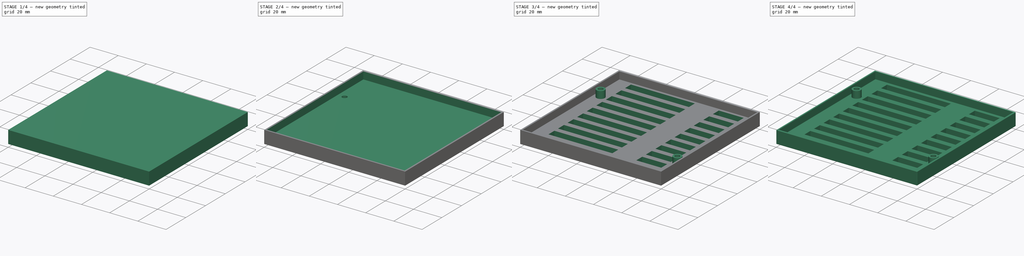
[diagram: build sequence overview — one tinted view per stage of 4, left to right]
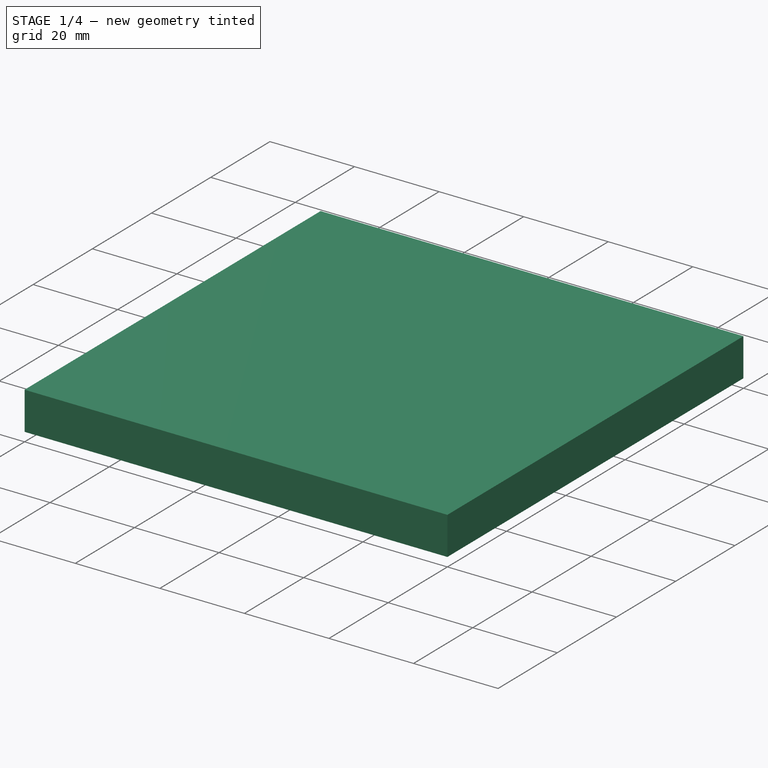
[diagram: stage 1 of 4 — iso view after this stage's code; geometry added in this stage tinted green]
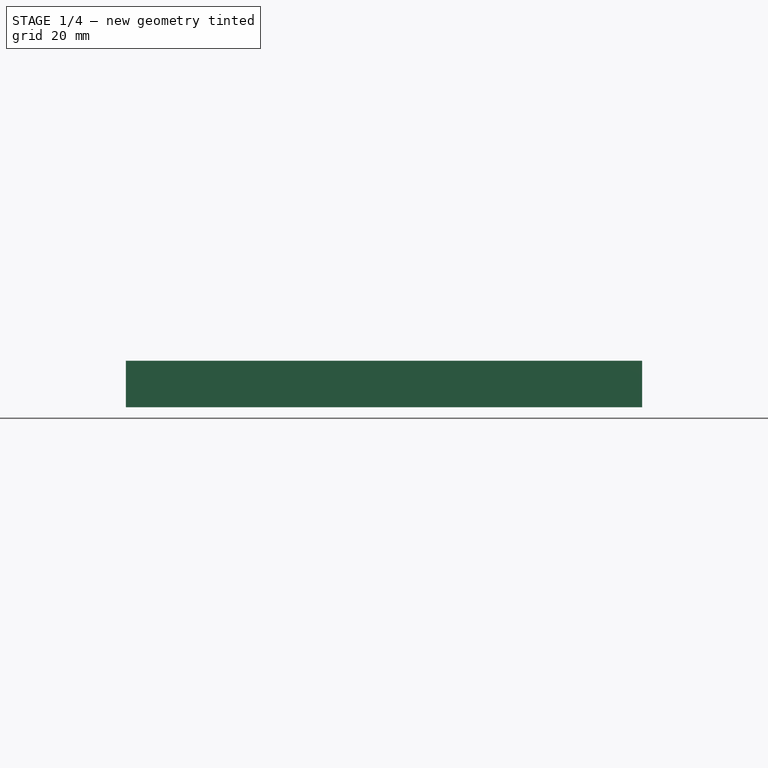
[diagram: stage 1 of 4 — front view after this stage's code; geometry added in this stage tinted green]
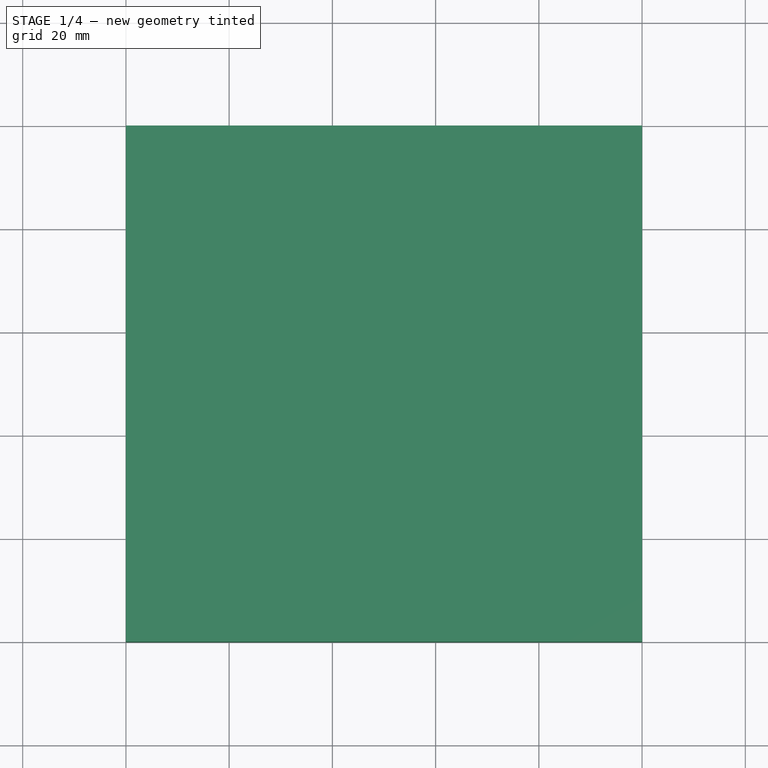
[diagram: stage 1 of 4 — top view after this stage's code; geometry added in this stage tinted green]
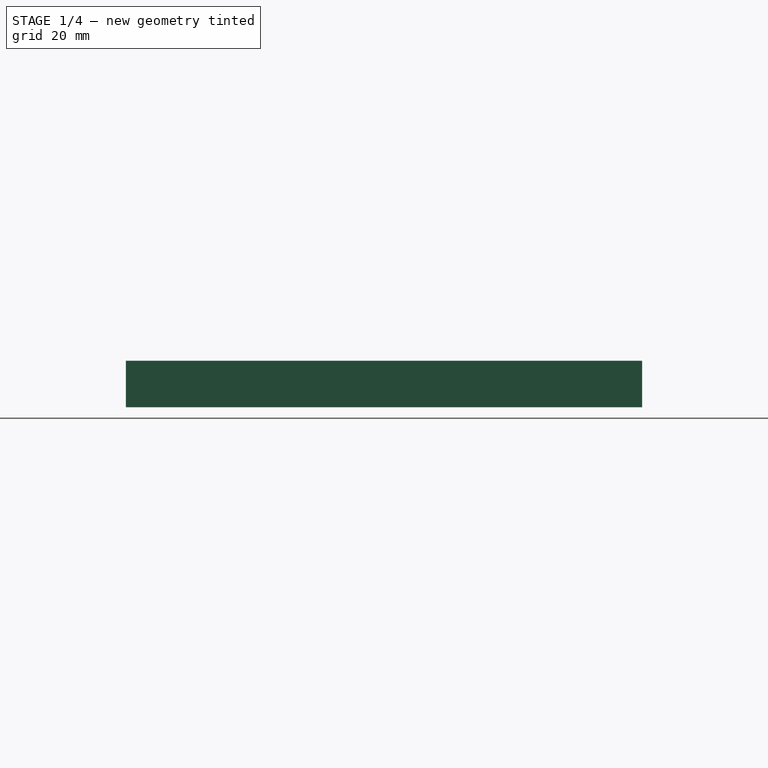
[diagram: stage 1 of 4 — right view after this stage's code; geometry added in this stage tinted green]
FCSTD DOCUMENT  (FreeCAD 1.0R39319 (Git))
Label: PCB mount
License: All rights reserved
LicenseURL: https://en.wikipedia.org/wiki/All_rights_reserved
objects: Sketcher::SketchObject×6, PartDesign::Pocket×4, PartDesign::Pad×2, PartDesign::Fillet×2, PartDesign::LinearPattern×1, PartDesign::Body×1
note: 39 computed .brp shape members not serialized (recipe doc carries the construction recipe); baked Part::Feature solids carry a one-line shape summary decoded from their .brp

FEATURE [Sketcher::SketchObject] Sketch
  ArcFitTolerance = 1e-06
  AttachmentSupport = -> [XY_Plane]
  FullyConstrained = true
  MakeInternals = false
  MapMode = 5
  sketch-geometry (4):
    g0: LineSegment StartX=0 StartY=0 StartZ=0 EndX=100 EndY=0 EndZ=0
    g1: LineSegment StartX=100 StartY=0 StartZ=0 EndX=100 EndY=100 EndZ=0
    g2: LineSegment StartX=100 StartY=100 StartZ=0 EndX=0 EndY=100 EndZ=0
    g3: LineSegment StartX=0 StartY=100 StartZ=0 EndX=0 EndY=0 EndZ=0
  constraints (11):
    c: Coincident(g0,g1)
    c: Coincident(g1,g2)
    c: Coincident(g2,g3)
    c: Coincident(g3,g0)
    c: Horizontal(g0)
    c: Horizontal(g2)
    c: Vertical(g1)
    c: Vertical(g3)
    c: Distance(g1,g3) = 100
    c: Distance(g0,g2) = 100
    c: Coincident(g0,g-1)
FEATURE [PartDesign::Pad] Pad
  Direction = (0,0,1)
  Length = 9
  Length2 = 10
  Profile = -> Sketch
  ReferenceAxis = -> Sketch [N_Axis]
  Refine = true
  Suppressed = false
  Type = 0
FEATURE [Sketcher::SketchObject] Sketch001
  ArcFitTolerance = 1e-06
  AttachmentSupport = -> [Pad]
  ExternalGeometry = -> [Pad]
  FullyConstrained = true
  MakeInternals = false
  MapMode = 5
  Placement = pos=(0,0,0) rot=(1,0,0;3.14159rad)
  sketch-geometry (25):
    g0: LineSegment [constr] StartX=100 StartY=0 StartZ=0 EndX=70 EndY=0 EndZ=0
    g1: LineSegment [constr] StartX=70 StartY=0 StartZ=0 EndX=70 EndY=-100 EndZ=0
    g2: LineSegment [constr] StartX=70 StartY=-100 StartZ=0 EndX=100 EndY=-100 EndZ=0
    g3: LineSegment [constr] StartX=100 StartY=-100 StartZ=0 EndX=100 EndY=0 EndZ=0
    g4: LineSegment [constr] StartX=70 StartY=0 StartZ=0 EndX=59 EndY=0 EndZ=0
    g5: LineSegment [constr] StartX=59 StartY=0 StartZ=0 EndX=59 EndY=-100 EndZ=0
    g6: LineSegment [constr] StartX=59 StartY=-100 StartZ=0 EndX=70 EndY=-100 EndZ=0
    g7: LineSegment [constr] StartX=70 StartY=-100 StartZ=0 EndX=70 EndY=0 EndZ=0
    g8: LineSegment [constr] StartX=59 StartY=0 StartZ=0 EndX=59 EndY=-9.5 EndZ=0
    g9: LineSegment [constr] StartX=59 StartY=-9.5 StartZ=0 EndX=59 EndY=-20.5 EndZ=0
    g10: LineSegment [constr] StartX=59 StartY=-20.5 StartZ=0 EndX=70 EndY=-20.5 EndZ=0
    g11: LineSegment [constr] StartX=70 StartY=-20.5 StartZ=0 EndX=70 EndY=-9.5 EndZ=0
    g12: LineSegment [constr] StartX=70 StartY=-9.5 StartZ=0 EndX=59 EndY=-9.5 EndZ=0
    g13: LineSegment [constr] StartX=59 StartY=-100 StartZ=0 EndX=59 EndY=-90.5 EndZ=0
    g14: LineSegment [constr] StartX=59 StartY=-90.5 StartZ=0 EndX=70 EndY=-90.5 EndZ=0
    g15: LineSegment [constr] StartX=70 StartY=-90.5 StartZ=0 EndX=70 EndY=-79.5 EndZ=0
    g16: LineSegment [constr] StartX=70 StartY=-79.5 StartZ=0 EndX=59 EndY=-79.5 EndZ=0
    g17: LineSegment [constr] StartX=59 StartY=-79.5 StartZ=0 EndX=59 EndY=-90.5 EndZ=0
    g18: LineSegment [constr] StartX=59 StartY=-9.5 StartZ=0 EndX=70 EndY=-20.5 EndZ=0
    g19: LineSegment [constr] StartX=59 StartY=-20.5 StartZ=0 EndX=70 EndY=-9.5 EndZ=0
    g20: LineSegment [constr] StartX=59 StartY=-79.5 StartZ=0 EndX=70 EndY=-90.5 EndZ=0
    g21: LineSegment [constr] StartX=59 StartY=-90.5 StartZ=0 EndX=70 EndY=-79.5 EndZ=0
    g22: LineSegment [constr] StartX=64.5 StartY=-15 StartZ=0 EndX=64.5 EndY=-85 EndZ=0
    g23: Circle CenterX=64.5 CenterY=-15 CenterZ=0 NormalX=0 NormalY=0 NormalZ=1 AngleXU=0 Radius=5.5
    g24: Circle CenterX=64.5 CenterY=-85 CenterZ=0 NormalX=0 NormalY=0 NormalZ=1 AngleXU=0 Radius=5.5
  constraints (64):
    c: Coincident(g0,g1)
    c: Coincident(g1,g2)
    c: Coincident(g2,g3)
    c: Coincident(g3,g0)
    c: Horizontal(g0)
    c: Horizontal(g2)
    c: Vertical(g1)
    c: Vertical(g3)
    c: Coincident(g0,g-5)
    c: PointOnObject(g1,g-4)
    c: DistanceX(g0,g0) = 30
    c: Coincident(g4,g5)
    c: Coincident(g5,g6)
    c: Coincident(g6,g7)
    c: Coincident(g7,g4)
    c: Horizontal(g4)
    c: Horizontal(g6)
    c: Vertical(g5)
    c: Vertical(g7)
    c: Distance(g5,g7) = 11
    c: Coincident(g4,g0)
    c: PointOnObject(g5,g-4)
    c: Coincident(g8,g4)
    c: PointOnObject(g8,g5)
    c: Coincident(g9,g10)
    c: Coincident(g10,g11)
    c: Coincident(g11,g12)
    c: Coincident(g12,g9)
    c: Vertical(g9)
    c: Vertical(g11)
    c: Horizontal(g10)
    c: Horizontal(g12)
    c: Distance(g10,g12) = 11
    c: Coincident(g9,g8)
    c: PointOnObject(g10,g1)
    c: Coincident(g13,g5)
    c: PointOnObject(g13,g5)
    c: Coincident(g14,g15)
    c: Coincident(g15,g16)
    c: Coincident(g16,g17)
    c: Coincident(g17,g14)
    c: Horizontal(g14)
    c: Horizontal(g16)
    c: Vertical(g15)
    c: Vertical(g17)
    c: Coincident(g14,g13)
    c: PointOnObject(g15,g1)
    c: Equal(g17,g9)
    c: Coincident(g18,g8)
    c: Coincident(g18,g10)
    c: Coincident(g19,g9)
    c: Coincident(g19,g11)
    c: Coincident(g20,g16)
    c: Coincident(g20,g14)
    c: Coincident(g21,g13)
    c: Coincident(g21,g15)
    c: Symmetric(g18,g18,g22)
    c: Symmetric(g21,g21,g22)
    c: DistanceY(g22,g22) = 70
    c: Coincident(g23,g22)
    c: Tangent(g23,g1)
    c: Symmetric(g21,g21,g24)
    c: Tangent(g24,g1)
    c: Distance(g22,g-5) = 15
FEATURE [PartDesign::Pocket] Pocket
  BaseFeature = -> Pad
  Direction = (0,0,1)
  Length = 3.1
  Length2 = 5
  Profile = -> Sketch001
  ReferenceAxis = -> Sketch001 [N_Axis]
  Refine = true
  Suppressed = false
  Type = 0
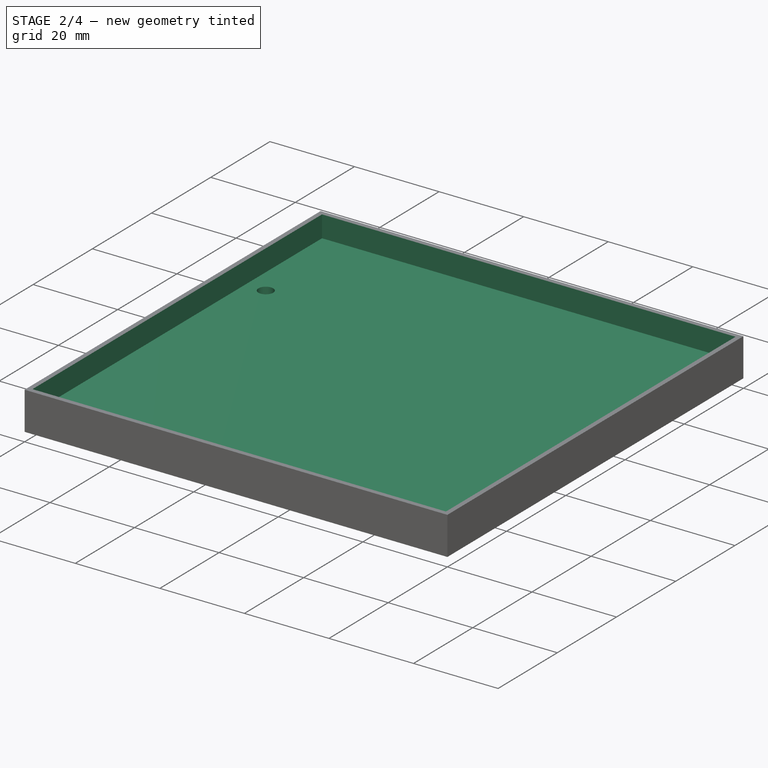
[diagram: stage 2 of 4 — iso view after this stage's code; geometry added in this stage tinted green]
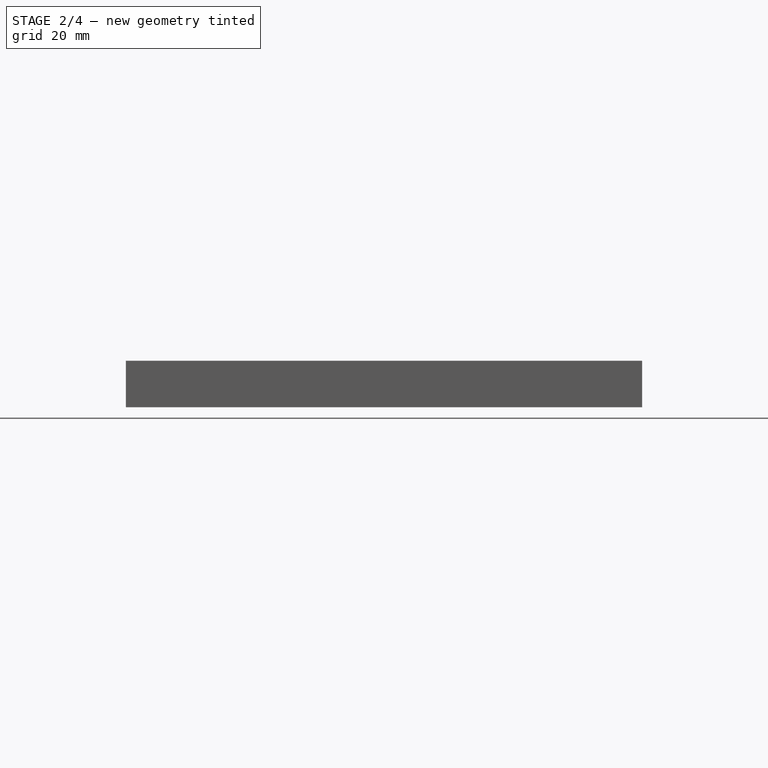
[diagram: stage 2 of 4 — front view after this stage's code; geometry added in this stage tinted green]
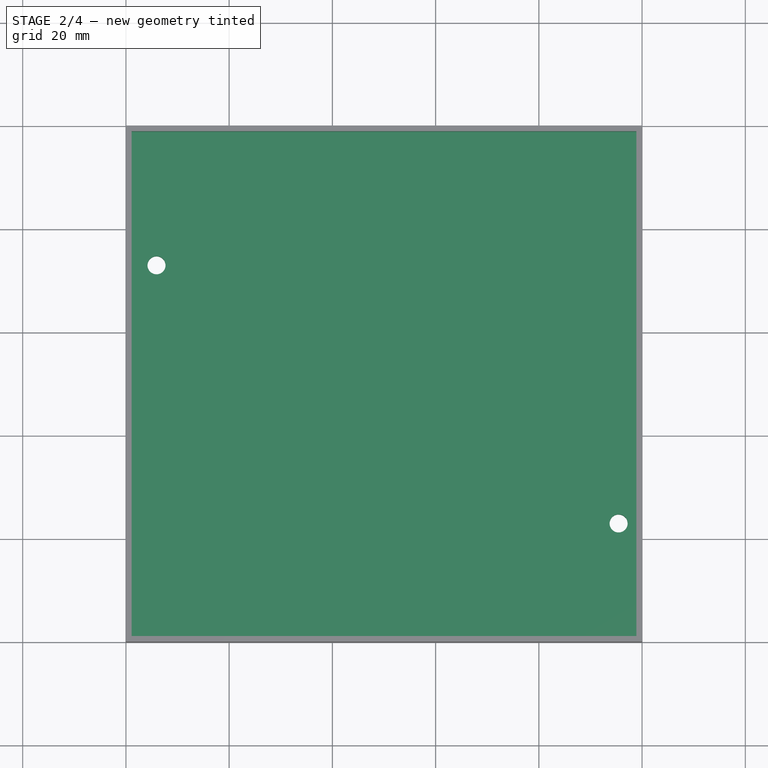
[diagram: stage 2 of 4 — top view after this stage's code; geometry added in this stage tinted green]
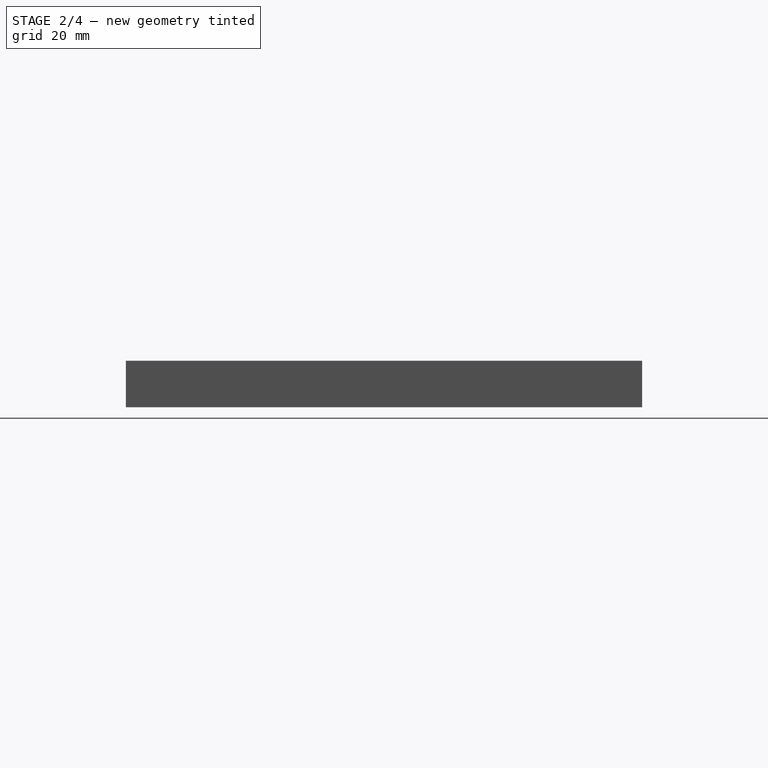
[diagram: stage 2 of 4 — right view after this stage's code; geometry added in this stage tinted green]
FEATURE [Sketcher::SketchObject] Sketch002
  ArcFitTolerance = 1e-06
  AttachmentSupport = -> [Pocket]
  ExternalGeometry = -> [Pocket]
  FullyConstrained = true
  MakeInternals = false
  MapMode = 5
  Placement = pos=(0,0,9) rot=(0,0,1;0rad)
  sketch-geometry (4):
    g0: LineSegment StartX=1.1 StartY=98.9 StartZ=0 EndX=1.1 EndY=1.1 EndZ=0
    g1: LineSegment StartX=1.1 StartY=1.1 StartZ=0 EndX=98.9 EndY=1.1 EndZ=0
    g2: LineSegment StartX=98.9 StartY=1.1 StartZ=0 EndX=98.9 EndY=98.9 EndZ=0
    g3: LineSegment StartX=98.9 StartY=98.9 StartZ=0 EndX=1.1 EndY=98.9 EndZ=0
  constraints (12):
    c: Coincident(g0,g1)
    c: Coincident(g1,g2)
    c: Coincident(g2,g3)
    c: Coincident(g3,g0)
    c: Vertical(g0)
    c: Vertical(g2)
    c: Horizontal(g1)
    c: Horizontal(g3)
    c: Distance(g-4,g2) = 1.1
    c: Distance(g-3,g3) = 1.1
    c: Distance(g-2,g0) = 1.1
    c: Distance(g-1,g1) = 1.1
FEATURE [PartDesign::Pocket] Pocket001
  BaseFeature = -> Pocket
  Direction = (0,0,-1)
  Length = 5.1
  Length2 = 5
  Profile = -> Sketch002
  ReferenceAxis = -> Sketch002 [N_Axis]
  Refine = true
  Suppressed = false
  Type = 0
FEATURE [Sketcher::SketchObject] Sketch003
  ArcFitTolerance = 1e-06
  AttachmentSupport = -> [Pocket001]
  ExternalGeometry = -> [Pocket001]
  FullyConstrained = true
  MakeInternals = false
  MapMode = 5
  Placement = pos=(0,0,3.9) rot=(0,0,1;0rad)
  sketch-geometry (2):
    g0: Circle CenterX=95.45 CenterY=23 CenterZ=0 NormalX=0 NormalY=0 NormalZ=1 AngleXU=0 Radius=1.75
    g1: Circle CenterX=5.925 CenterY=73.025 CenterZ=0 NormalX=0 NormalY=0 NormalZ=1 AngleXU=0 Radius=1.75
  constraints (6):
    c: Distance(g0,g-4) = 4.55
    c: Distance(g0,g-6) = 23
    c: Diameter(g0) = 3.5
    c: Distance(g1,g-5) = 5.925
    c: Diameter(g1) = 3.5
    c: Distance(g1,g-3) = 26.975
FEATURE [PartDesign::Pocket] Pocket002
  BaseFeature = -> Pocket001
  Direction = (0,0,-1)
  Length = 5
  Length2 = 5
  Profile = -> Sketch003
  ReferenceAxis = -> Sketch003 [N_Axis]
  Refine = true
  Suppressed = false
  Type = 1
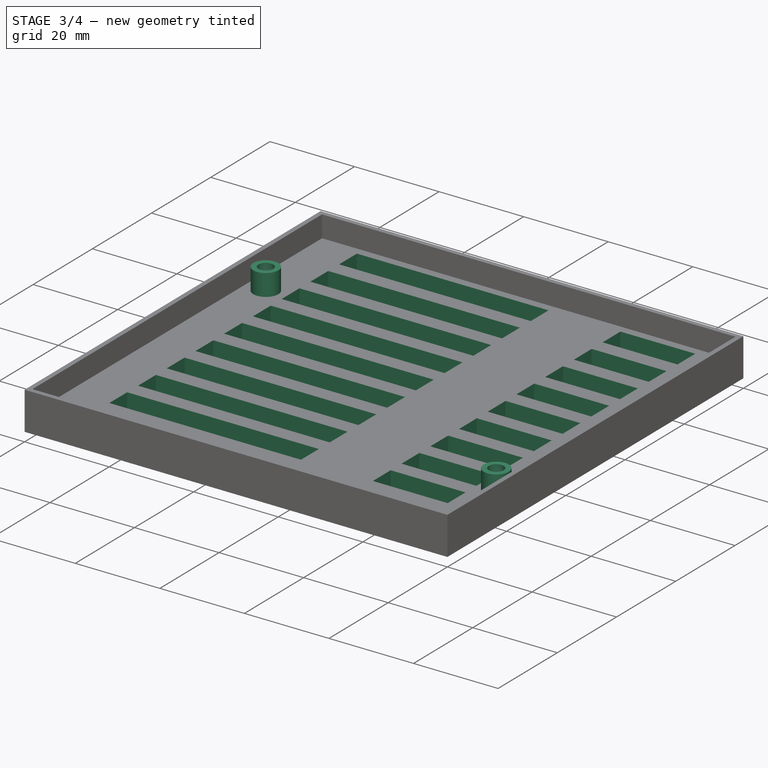
[diagram: stage 3 of 4 — iso view after this stage's code; geometry added in this stage tinted green]
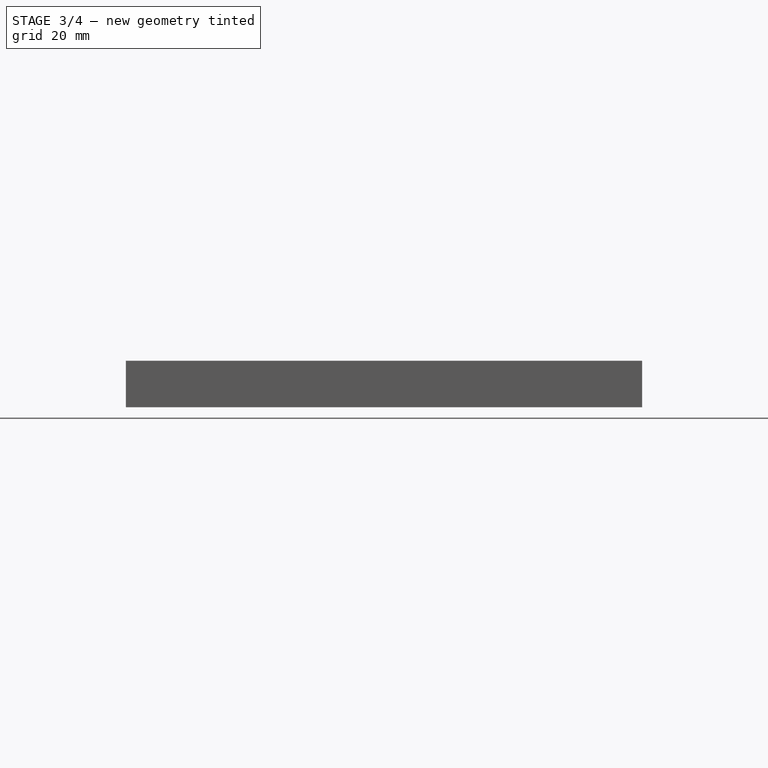
[diagram: stage 3 of 4 — front view after this stage's code; geometry added in this stage tinted green]
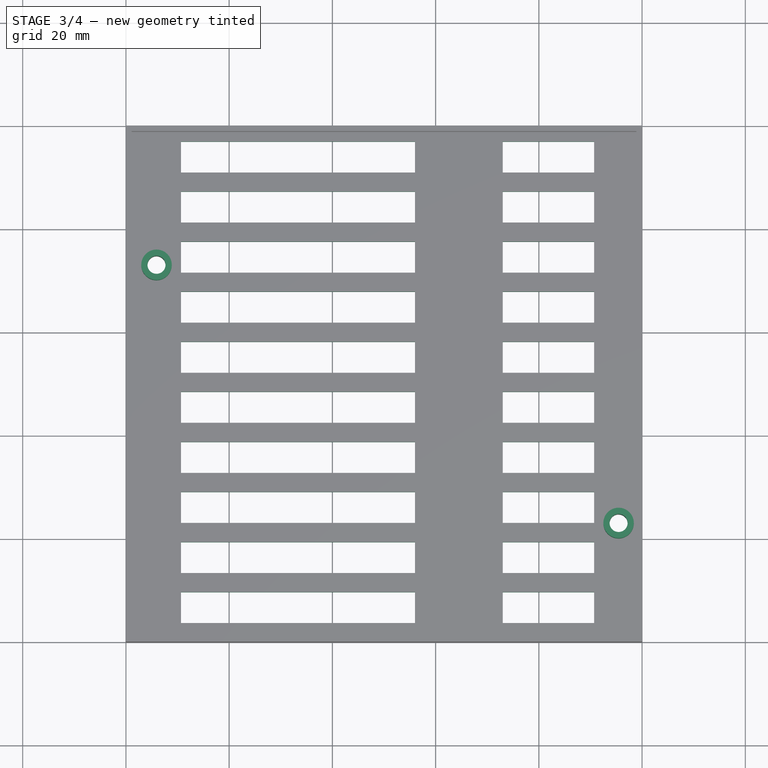
[diagram: stage 3 of 4 — top view after this stage's code; geometry added in this stage tinted green]
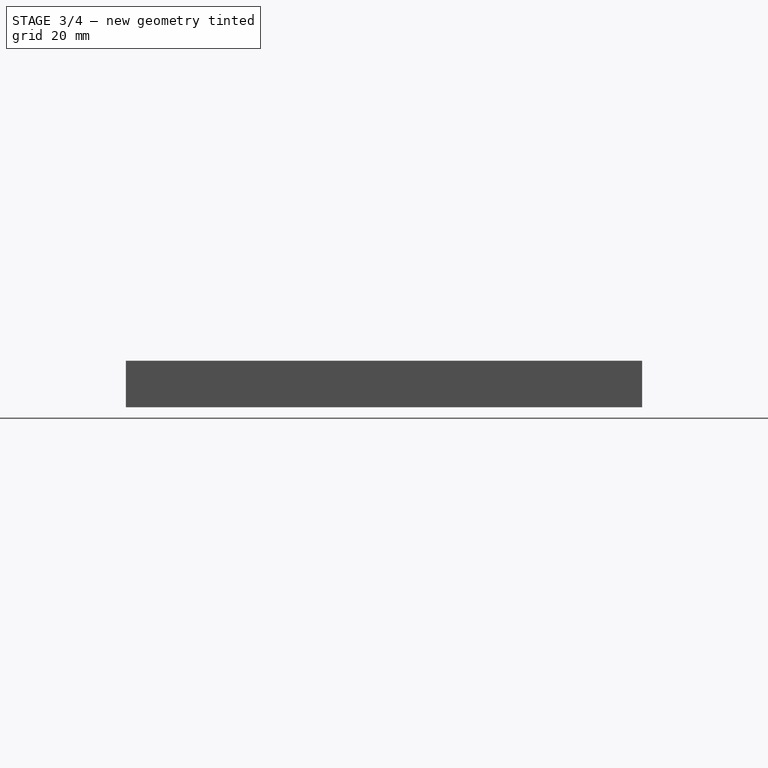
[diagram: stage 3 of 4 — right view after this stage's code; geometry added in this stage tinted green]
FEATURE [Sketcher::SketchObject] Sketch004
  ArcFitTolerance = 1e-06
  AttachmentSupport = -> [Pocket002]
  ExternalGeometry = -> [Pocket002]
  FullyConstrained = true
  MakeInternals = false
  MapMode = 5
  Placement = pos=(0,0,3.9) rot=(0,0,1;0rad)
  sketch-geometry (4):
    g0: Circle CenterX=5.925 CenterY=73.025 CenterZ=0 NormalX=0 NormalY=0 NormalZ=1 AngleXU=0 Radius=1.75
    g1: Circle CenterX=5.925 CenterY=73.025 CenterZ=0 NormalX=0 NormalY=0 NormalZ=1 AngleXU=0 Radius=2.95
    g2: Circle CenterX=95.45 CenterY=23 CenterZ=0 NormalX=0 NormalY=0 NormalZ=1 AngleXU=0 Radius=1.75
    g3: Circle CenterX=95.45 CenterY=23 CenterZ=0 NormalX=0 NormalY=0 NormalZ=1 AngleXU=0 Radius=2.95
  constraints (8):
    c: Coincident(g0,g-3)
    c: Equal(g0,g-3)
    c: Coincident(g1,g0)
    c: Coincident(g2,g-4)
    c: Equal(g2,g-4)
    c: Coincident(g3,g2)
    c: Distance(g3,g2) = 1.2
    c: Equal(g3,g1)
FEATURE [PartDesign::Pad] Pad001
  BaseFeature = -> Pocket002
  Direction = (0,0,1)
  Length = 5.1
  Length2 = 10
  Profile = -> Sketch004
  ReferenceAxis = -> Sketch004 [N_Axis]
  Refine = true
  Suppressed = false
  Type = 0
FEATURE [Sketcher::SketchObject] Sketch005
  ArcFitTolerance = 1e-06
  AttachmentSupport = -> [Pad001]
  ExternalGeometry = -> [Pad001]
  FullyConstrained = true
  MakeInternals = false
  MapMode = 5
  Placement = pos=(0,0,0) rot=(1,0,0;3.14159rad)
  sketch-geometry (8):
    g0: LineSegment StartX=10.675 StartY=-91 StartZ=0 EndX=10.675 EndY=-97 EndZ=0
    g1: LineSegment StartX=10.675 StartY=-97 StartZ=0 EndX=56 EndY=-97 EndZ=0
    g2: LineSegment StartX=56 StartY=-97 StartZ=0 EndX=56 EndY=-91 EndZ=0
    g3: LineSegment StartX=56 StartY=-91 StartZ=0 EndX=10.675 EndY=-91 EndZ=0
    g4: LineSegment StartX=73 StartY=-91 StartZ=0 EndX=73 EndY=-97 EndZ=0
    g5: LineSegment StartX=73 StartY=-97 StartZ=0 EndX=90.7 EndY=-97 EndZ=0
    g6: LineSegment StartX=90.7 StartY=-97 StartZ=0 EndX=90.7 EndY=-91 EndZ=0
    g7: LineSegment StartX=90.7 StartY=-91 StartZ=0 EndX=73 EndY=-91 EndZ=0
  constraints (24):
    c: Coincident(g0,g1)
    c: Coincident(g1,g2)
    c: Coincident(g2,g3)
    c: Coincident(g3,g0)
    c: Vertical(g0)
    c: Vertical(g2)
    c: Horizontal(g1)
    c: Horizontal(g3)
    c: Distance(g-8,g1) = 3
    c: Distance(g2,g2) = 6
    c: Distance(g-4,g0) = 3
    c: Distance(g-10,g2) = 3
    c: Coincident(g4,g5)
    c: Coincident(g5,g6)
    c: Coincident(g6,g7)
    c: Coincident(g7,g4)
    c: Vertical(g4)
    c: Vertical(g6)
    c: Horizontal(g5)
    c: Horizontal(g7)
    c: Distance(g-3,g6) = 3
    c: Distance(g-12,g4) = 3
    c: Equal(g4,g2)
    c: Distance(g-8,g5) = 3
FEATURE [PartDesign::Pocket] Pocket003
  BaseFeature = -> Pad001
  Direction = (0,0,1)
  Length = 5
  Length2 = 5
  Profile = -> Sketch005
  ReferenceAxis = -> Sketch005 [N_Axis]
  Refine = true
  Suppressed = false
  Type = 1
FEATURE [PartDesign::LinearPattern] LinearPattern
  BaseFeature = -> Pocket003
  Direction = -> Pocket003 [Edge9]
  Length = 87.3
  Mode = 1
  Occurrences = 10
  Offset = 9.7
  Originals = -> [Pocket003]
  Refine = true
  Reversed = true
  Suppressed = false
  TransformMode = 0
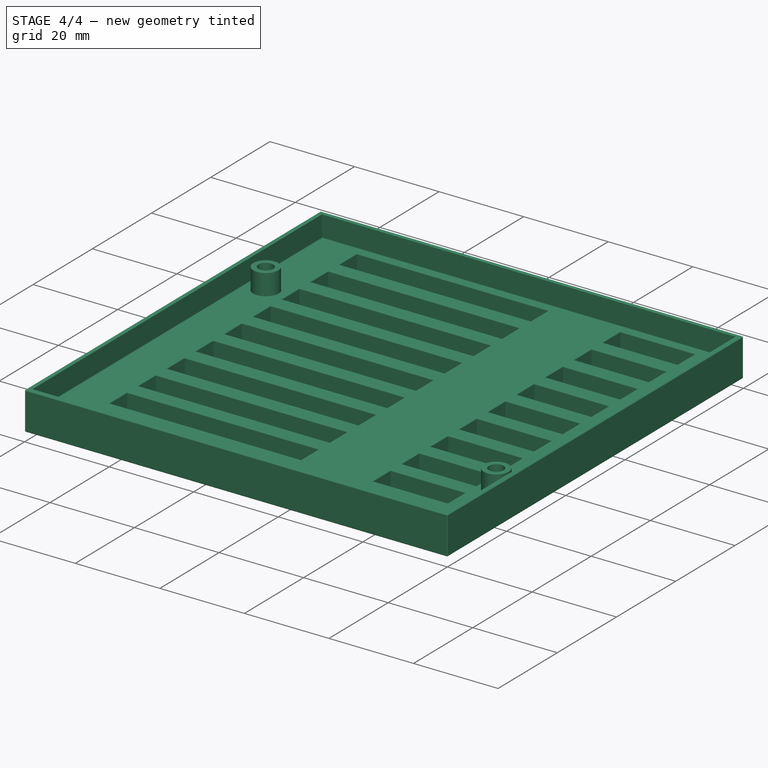
[diagram: stage 4 of 4 — iso view after this stage's code; geometry added in this stage tinted green]
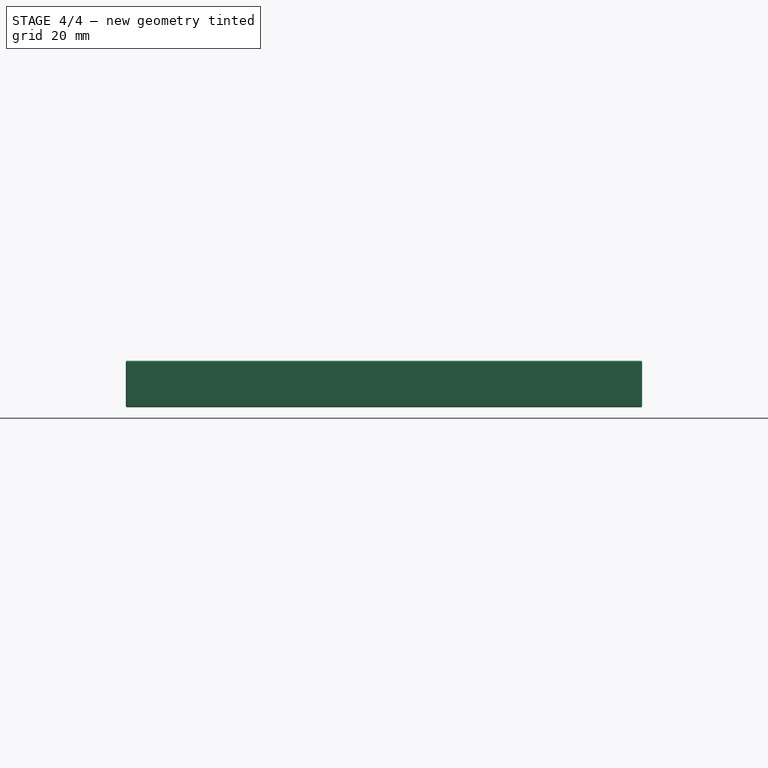
[diagram: stage 4 of 4 — front view after this stage's code; geometry added in this stage tinted green]
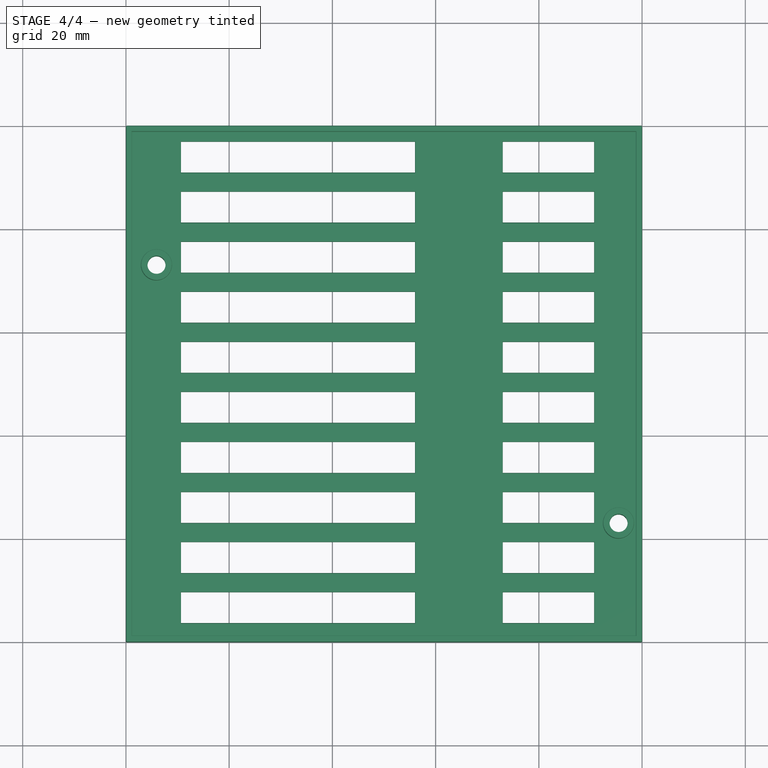
[diagram: stage 4 of 4 — top view after this stage's code; geometry added in this stage tinted green]
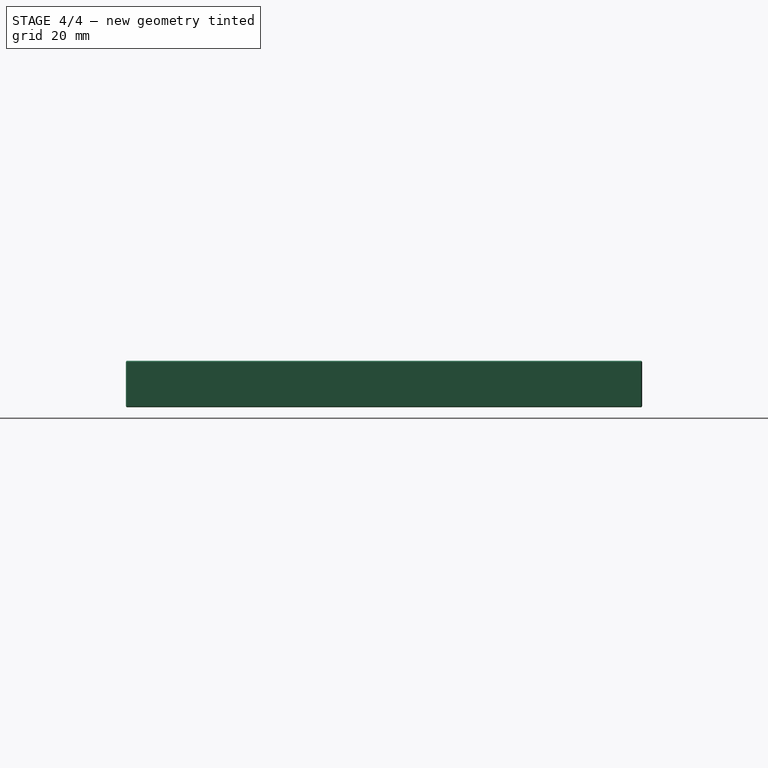
[diagram: stage 4 of 4 — right view after this stage's code; geometry added in this stage tinted green]
FEATURE [PartDesign::Fillet] Fillet
  Base = -> LinearPattern [Face95]
  BaseFeature = -> LinearPattern
  Radius = 0.2
  Refine = true
  SupportTransform = false
  Suppressed = false
  UseAllEdges = false
FEATURE [PartDesign::Fillet] Fillet001
  Base = -> Fillet [Face4,Face10,Face12,Face11,Face13]
  BaseFeature = -> Fillet
  Radius = 0.25
  Refine = true
  SupportTransform = false
  Suppressed = false
  UseAllEdges = false
FEATURE [PartDesign::Body] Body
  AllowCompound = false
  Group = -> [Sketch,Pad,Sketch001,Pocket,Sketch002,Pocket001,Sketch003,Pocket002,Sketch004,Pad001,Sketch005,Pocket003,LinearPattern,Fillet,Fillet001]
  Origin = -> Origin
  Tip = -> Fillet001
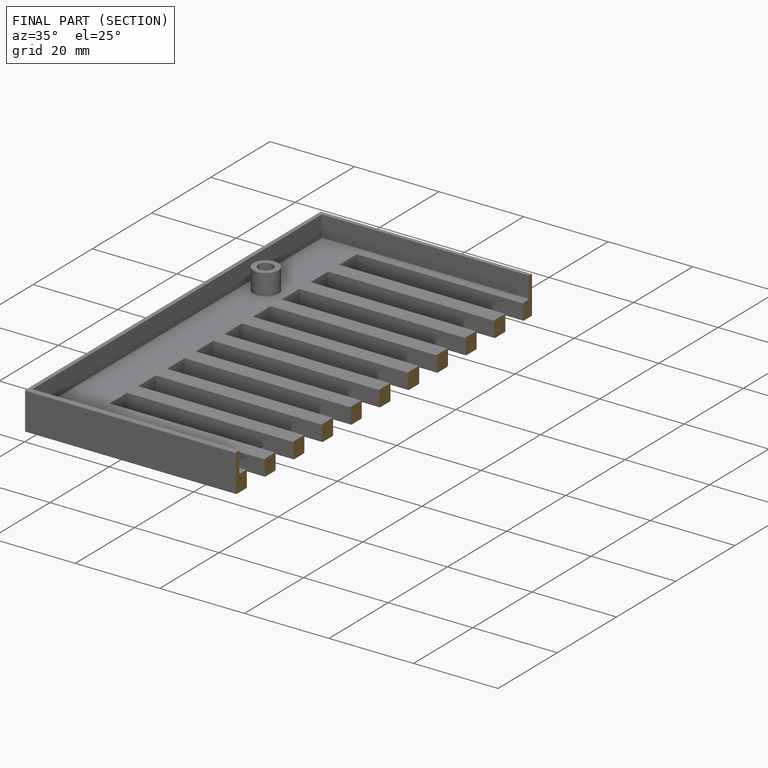
[diagram: finished part — half-section view (interior)]
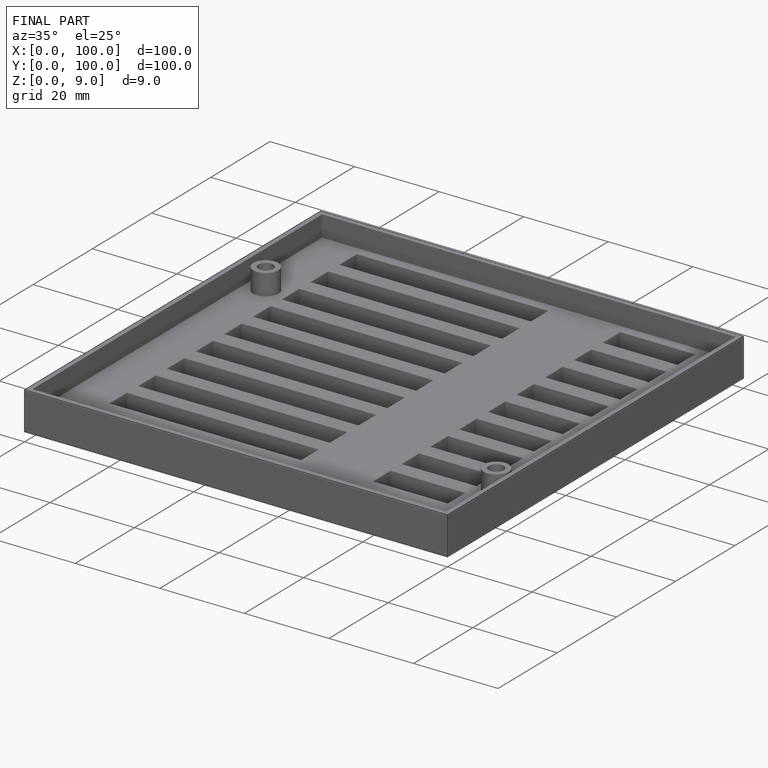
[diagram: finished part — iso view with bounding-box wireframe]
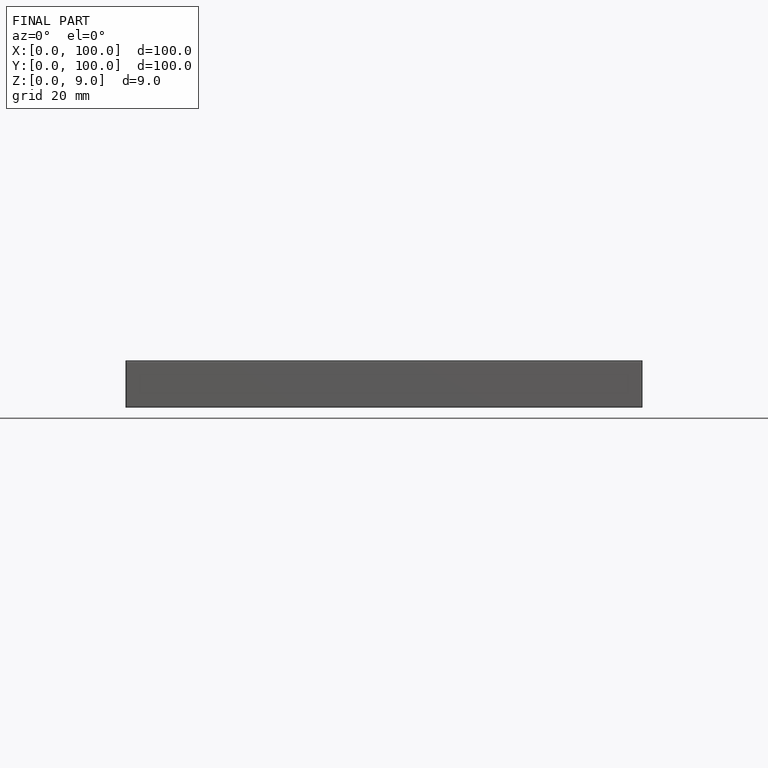
[diagram: finished part — front view with bounding-box wireframe]
